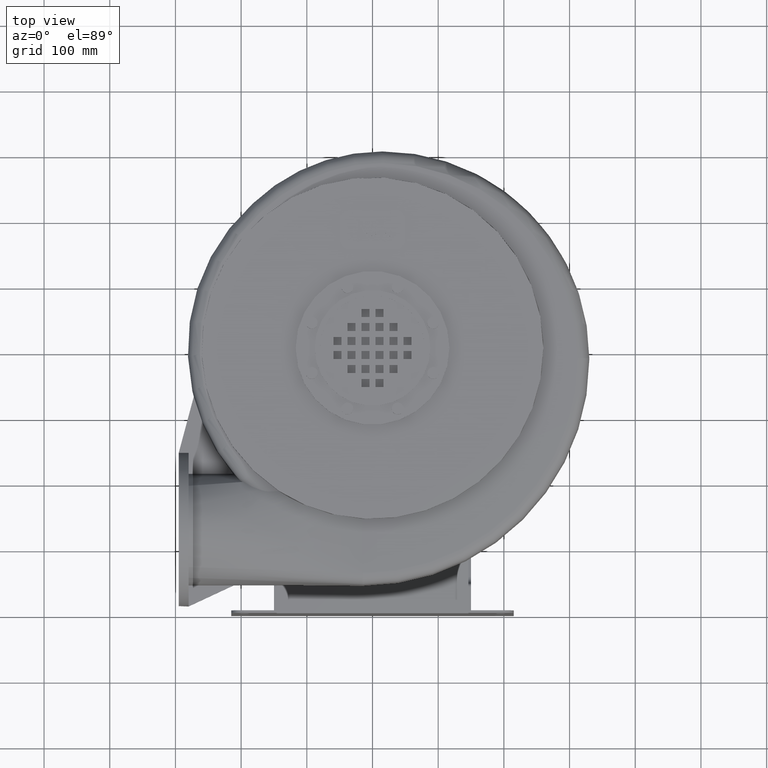
[diagram: clean part render]
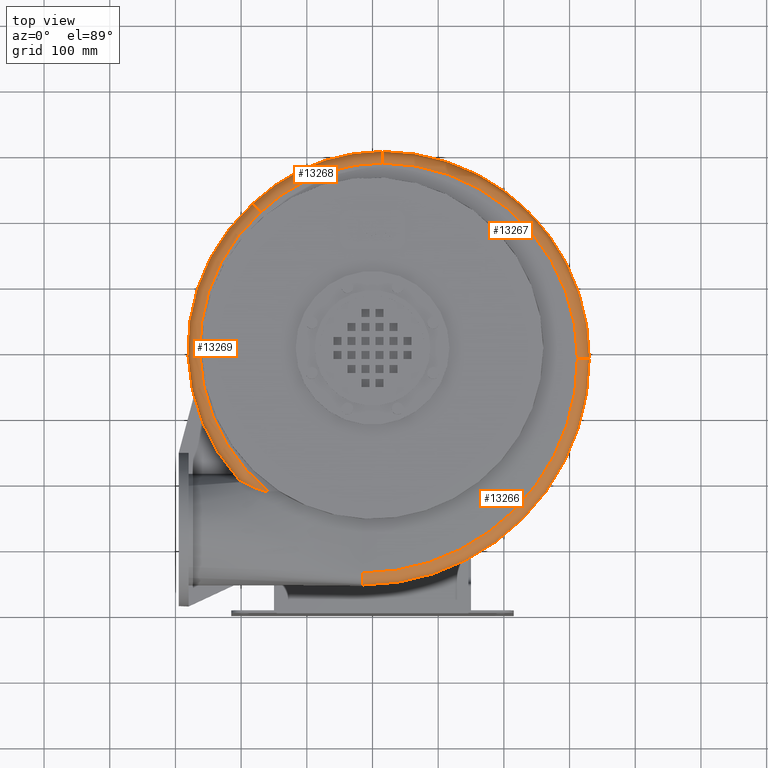
[diagram: same view with one multi-face feature highlighted, each face labeled with its STEP entity id]
A machine part, top view. The highlighted faces form ONE feature: a constant-radius fillet chain: 4 tangent blend faces with common blend radius 18 mm. The faces share edges in the B-rep.
Their STEP definitions:
[1] entity #13267 (Torus):
#22=TOROIDAL_SURFACE('',#13975,297.,18.);
#3809=FACE_OUTER_BOUND('',#4631,.T.);
#4631=EDGE_LOOP('',(#11240,#11241,#11242,#11243));
#4904=CIRCLE('',#13973,18.);
#4906=CIRCLE('',#13976,315.);
#4907=CIRCLE('',#13977,18.);
#4908=CIRCLE('',#13978,297.);
#6092=VERTEX_POINT('',#22809);
#6093=VERTEX_POINT('',#22811);
#6094=VERTEX_POINT('',#22815);
#6095=VERTEX_POINT('',#22817);
#7835=EDGE_CURVE('',#6093,#6092,#4904,.T.);
#7837=EDGE_CURVE('',#6092,#6094,#4906,.T.);
#7838=EDGE_CURVE('',#6095,#6094,#4907,.T.);
#7839=EDGE_CURVE('',#6095,#6093,#4908,.T.);
#11240=ORIENTED_EDGE('',*,*,#7835,.T.);
#11241=ORIENTED_EDGE('',*,*,#7837,.T.);
#11242=ORIENTED_EDGE('',*,*,#7838,.F.);
#11243=ORIENTED_EDGE('',*,*,#7839,.T.);
#13267=ADVANCED_FACE('',(#3809),#22,.T.);
#13973=AXIS2_PLACEMENT_3D('',#22812,#16500,#16501);
#13975=AXIS2_PLACEMENT_3D('',#22814,#16504,#16505);
#13976=AXIS2_PLACEMENT_3D('',#22816,#16506,#16507);
#13977=AXIS2_PLACEMENT_3D('',#22818,#16508,#16509);
#13978=AXIS2_PLACEMENT_3D('',#22819,#16510,#16511);
#16500=DIRECTION('center_axis',(-5.41233724504767E-15,1.,-4.67343487721591E-16));
#16501=DIRECTION('ref_axis',(2.21867473071667E-15,4.67343487721603E-16,
1.));
#16504=DIRECTION('center_axis',(-2.21867473071667E-15,-4.67343487721603E-16,
-1.));
#16505=DIRECTION('ref_axis',(-1.,-5.41365893912457E-15,2.34591887362065E-15));
#16506=DIRECTION('center_axis',(2.21867473071667E-15,4.67343487721603E-16,
1.));
#16507=DIRECTION('ref_axis',(0.707106781186544,0.707106781186551,-1.89930169664831E-15));
#16508=DIRECTION('center_axis',(-1.,-4.42547233426975E-15,2.21867473071668E-15));
#16509=DIRECTION('ref_axis',(2.21867473071667E-15,4.67343487721603E-16,
1.));
#16510=DIRECTION('center_axis',(-2.21867473071667E-15,-4.67343487721603E-16,
-1.));
#16511=DIRECTION('ref_axis',(0.707106781186544,0.707106781186551,-1.89930169664831E-15));
#22809=CARTESIAN_POINT('',(330.,385.,432.499999999997));
#22811=CARTESIAN_POINT('',(312.,385.,450.499999999997));
#22812=CARTESIAN_POINT('Origin',(312.,385.,432.499999999997));
#22814=CARTESIAN_POINT('Origin',(14.9999999999995,384.999999999999,432.499999999998));
#22815=CARTESIAN_POINT('',(14.9999999999978,699.999999999999,432.499999999998));
#22816=CARTESIAN_POINT('Origin',(14.9999999999995,384.999999999999,432.499999999998));
#22817=CARTESIAN_POINT('',(14.9999999999979,681.999999999999,450.499999999998));
#22818=CARTESIAN_POINT('Origin',(14.9999999999979,681.999999999999,432.499999999998));
#22819=CARTESIAN_POINT('Origin',(14.9999999999995,384.999999999999,450.499999999998));
[2] entity #13266 (Torus):
#21=TOROIDAL_SURFACE('',#13970,327.,18.);
#3808=FACE_OUTER_BOUND('',#4630,.T.);
#4630=EDGE_LOOP('',(#11236,#11237,#11238,#11239));
#4902=CIRCLE('',#13971,18.);
#4903=CIRCLE('',#13972,345.);
#4904=CIRCLE('',#13973,18.);
#4905=CIRCLE('',#13974,327.);
#6090=VERTEX_POINT('',#22806);
#6091=VERTEX_POINT('',#22807);
#6092=VERTEX_POINT('',#22809);
#6093=VERTEX_POINT('',#22811);
#7833=EDGE_CURVE('',#6090,#6091,#4902,.T.);
#7834=EDGE_CURVE('',#6091,#6092,#4903,.T.);
#7835=EDGE_CURVE('',#6093,#6092,#4904,.T.);
#7836=EDGE_CURVE('',#6093,#6090,#4905,.T.);
#11236=ORIENTED_EDGE('',*,*,#7833,.T.);
#11237=ORIENTED_EDGE('',*,*,#7834,.T.);
#11238=ORIENTED_EDGE('',*,*,#7835,.F.);
#11239=ORIENTED_EDGE('',*,*,#7836,.T.);
#13266=ADVANCED_FACE('',(#3808),#21,.T.);
#13970=AXIS2_PLACEMENT_3D('',#22805,#16494,#16495);
#13971=AXIS2_PLACEMENT_3D('',#22808,#16496,#16497);
#13972=AXIS2_PLACEMENT_3D('',#22810,#16498,#16499);
#13973=AXIS2_PLACEMENT_3D('',#22812,#16500,#16501);
#13974=AXIS2_PLACEMENT_3D('',#22813,#16502,#16503);
#16494=DIRECTION('center_axis',(-2.21867473071667E-15,-4.67343487721603E-16,
-1.));
#16495=DIRECTION('ref_axis',(-1.,-5.43719658668598E-15,2.3066894610183E-15));
#16496=DIRECTION('center_axis',(1.,5.51295955848887E-15,-2.21867473071668E-15));
#16497=DIRECTION('ref_axis',(5.51295955848887E-15,-1.,4.67343487721591E-16));
#16498=DIRECTION('center_axis',(2.21867473071667E-15,4.67343487721603E-16,
1.));
#16499=DIRECTION('ref_axis',(0.707106781186551,-0.707106781186544,-1.23837819802569E-15));
#16500=DIRECTION('center_axis',(-5.41233724504767E-15,1.,-4.67343487721591E-16));
#16501=DIRECTION('ref_axis',(2.21867473071667E-15,4.67343487721603E-16,
1.));
#16502=DIRECTION('center_axis',(-2.21867473071667E-15,-4.67343487721603E-16,
-1.));
#16503=DIRECTION('ref_axis',(0.707106781186551,-0.707106781186544,-1.23837819802569E-15));
#22805=CARTESIAN_POINT('Origin',(-15.0000000000005,384.999999999998,432.499999999998));
#22806=CARTESIAN_POINT('',(-14.9999999999986,57.9999999999984,450.499999999998));
#22807=CARTESIAN_POINT('',(-14.9999999999986,39.9999999999984,432.499999999998));
#22808=CARTESIAN_POINT('Origin',(-14.9999999999987,57.9999999999984,432.499999999998));
#22809=CARTESIAN_POINT('',(330.,385.,432.499999999997));
#22810=CARTESIAN_POINT('Origin',(-15.0000000000005,384.999999999998,432.499999999998));
#22811=CARTESIAN_POINT('',(312.,385.,450.499999999997));
#22812=CARTESIAN_POINT('Origin',(312.,385.,432.499999999997));
#22813=CARTESIAN_POINT('Origin',(-15.0000000000005,384.999999999998,450.499999999998));
[3] entity #13268 (Torus):
#23=TOROIDAL_SURFACE('',#13979,267.,18.);
#2729=B_SPLINE_CURVE_WITH_KNOTS('',3,(#22824,#22825,#22826,#22827,#22828,
#22829,#22830,#22831,#22832,#22833,#22834,#22835,#22836,#22837),
 .UNSPECIFIED.,.F.,.F.,(4,2,2,2,2,2,4),(-2.83488517504639,-2.83200831798652,
-2.47070126932763,-2.10940030404513,-1.40617260926018,-0.703058524365479,
0.),.UNSPECIFIED.);
#3810=FACE_OUTER_BOUND('',#4632,.T.);
#4632=EDGE_LOOP('',(#11244,#11245,#11246,#11247));
#4907=CIRCLE('',#13977,18.);
#4909=CIRCLE('',#13980,285.);
#4910=CIRCLE('',#13981,267.);
#6094=VERTEX_POINT('',#22815);
#6095=VERTEX_POINT('',#22817);
#6096=VERTEX_POINT('',#22821);
#6097=VERTEX_POINT('',#22823);
#7838=EDGE_CURVE('',#6095,#6094,#4907,.T.);
#7840=EDGE_CURVE('',#6094,#6096,#4909,.T.);
#7841=EDGE_CURVE('',#6097,#6096,#2729,.T.);
#7842=EDGE_CURVE('',#6097,#6095,#4910,.T.);
#11244=ORIENTED_EDGE('',*,*,#7838,.T.);
#11245=ORIENTED_EDGE('',*,*,#7840,.T.);
#11246=ORIENTED_EDGE('',*,*,#7841,.F.);
#11247=ORIENTED_EDGE('',*,*,#7842,.T.);
#13268=ADVANCED_FACE('',(#3810),#23,.T.);
#13977=AXIS2_PLACEMENT_3D('',#22818,#16508,#16509);
#13979=AXIS2_PLACEMENT_3D('',#22820,#16512,#16513);
#13980=AXIS2_PLACEMENT_3D('',#22822,#16514,#16515);
#13981=AXIS2_PLACEMENT_3D('',#22838,#16516,#16517);
#16508=DIRECTION('center_axis',(-1.,-4.42547233426975E-15,2.21867473071668E-15));
#16509=DIRECTION('ref_axis',(2.21867473071667E-15,4.67343487721603E-16,
1.));
#16512=DIRECTION('center_axis',(-2.21867473071667E-15,-4.67343487721603E-16,
-1.));
#16513=DIRECTION('ref_axis',(-1.,-5.38516599733971E-15,2.1939565174347E-15));
#16514=DIRECTION('center_axis',(2.21867473071667E-15,4.67343487721603E-16,
1.));
#16515=DIRECTION('ref_axis',(-0.373383455282054,0.92767709647357,3.94872587356564E-16));
#16516=DIRECTION('center_axis',(-2.21867473071667E-15,-4.67343487721603E-16,
-1.));
#16517=DIRECTION('ref_axis',(-0.373383455282054,0.927677096473571,3.94872587356564E-16));
#22815=CARTESIAN_POINT('',(14.9999999999978,699.999999999999,432.499999999998));
#22817=CARTESIAN_POINT('',(14.9999999999979,681.999999999999,450.499999999998));
#22818=CARTESIAN_POINT('Origin',(14.9999999999979,681.999999999999,432.499999999998));
#22820=CARTESIAN_POINT('Origin',(14.9999999999993,414.999999999999,432.499999999998));
#22821=CARTESIAN_POINT('',(-182.436189410375,620.533333333331,432.499999999998));
#22822=CARTESIAN_POINT('Origin',(14.9999999999993,414.999999999999,432.499999999998));
#22823=CARTESIAN_POINT('',(-170.194192373545,607.333333333331,450.499999999998));
#22824=CARTESIAN_POINT('Ctrl Pts',(-170.194192373545,607.333333333331,450.499999999998));
#22825=CARTESIAN_POINT('Ctrl Pts',(-170.200713365812,607.340364463637,450.499999999998));
#22826=CARTESIAN_POINT('Ctrl Pts',(-170.207234356829,607.347395592722,450.499992339338));
#22827=CARTESIAN_POINT('Ctrl Pts',(-171.032731502844,608.237471559803,450.49805280055));
#22828=CARTESIAN_POINT('Ctrl Pts',(-171.849513861524,609.118155446761,450.375301420064));
#22829=CARTESIAN_POINT('Ctrl Pts',(-173.454112500347,610.848299089959,449.891832147622));
#22830=CARTESIAN_POINT('Ctrl Pts',(-174.237891878407,611.693406079676,449.532334719868));
#22831=CARTESIAN_POINT('Ctrl Pts',(-176.457925054644,614.087157935863,448.142045660401));
#22832=CARTESIAN_POINT('Ctrl Pts',(-177.788490364918,615.521853956856,446.811209274199));
#22833=CARTESIAN_POINT('Ctrl Pts',(-180.027640172082,617.936253077707,443.47466010468));
#22834=CARTESIAN_POINT('Ctrl Pts',(-180.914885145688,618.892946152111,441.500953948425));
#22835=CARTESIAN_POINT('Ctrl Pts',(-182.124925692854,620.197703643501,437.164631659346));
#22836=CARTESIAN_POINT('Ctrl Pts',(-182.436189410375,620.533333333331,434.84352841455));
#22837=CARTESIAN_POINT('Ctrl Pts',(-182.436189410375,620.533333333331,432.499999999998));
#22838=CARTESIAN_POINT('Origin',(14.9999999999994,414.999999999999,450.499999999998));
[4] entity #13269 (Torus):
#24=TOROIDAL_SURFACE('',#13982,278.,18.);
#2729=B_SPLINE_CURVE_WITH_KNOTS('',3,(#22824,#22825,#22826,#22827,#22828,
#22829,#22830,#22831,#22832,#22833,#22834,#22835,#22836,#22837),
 .UNSPECIFIED.,.F.,.F.,(4,2,2,2,2,2,4),(-2.83488517504639,-2.83200831798652,
-2.47070126932763,-2.10940030404513,-1.40617260926018,-0.703058524365479,
0.),.UNSPECIFIED.);
#2730=B_SPLINE_CURVE_WITH_KNOTS('',3,(#22842,#22843,#22844,#22845,#22846,
#22847,#22848,#22849),.UNSPECIFIED.,.F.,.F.,(4,2,2,4),(0.,2.90405011560865,
4.6215907110657,5.10169561148826),.UNSPECIFIED.);
#2731=B_SPLINE_CURVE_WITH_KNOTS('',3,(#22853,#22854,#22855,#22856,#22857,
#22858,#22859),.UNSPECIFIED.,.F.,.F.,(4,3,4),(0.000262802662768154,0.521391874350161,
1.10720859134091),.UNSPECIFIED.);
#3811=FACE_OUTER_BOUND('',#4633,.T.);
#4633=EDGE_LOOP('',(#11248,#11249,#11250,#11251,#11252));
#4911=CIRCLE('',#13983,278.);
#4912=CIRCLE('',#13984,296.);
#6096=VERTEX_POINT('',#22821);
#6097=VERTEX_POINT('',#22823);
#6098=VERTEX_POINT('',#22840);
#6099=VERTEX_POINT('',#22841);
#6100=VERTEX_POINT('',#22851);
#7841=EDGE_CURVE('',#6097,#6096,#2729,.T.);
#7843=EDGE_CURVE('',#6098,#6099,#2730,.T.);
#7844=EDGE_CURVE('',#6099,#6097,#4911,.T.);
#7845=EDGE_CURVE('',#6096,#6100,#4912,.T.);
#7846=EDGE_CURVE('',#6100,#6098,#2731,.T.);
#11248=ORIENTED_EDGE('',*,*,#7843,.T.);
#11249=ORIENTED_EDGE('',*,*,#7844,.T.);
#11250=ORIENTED_EDGE('',*,*,#7841,.T.);
#11251=ORIENTED_EDGE('',*,*,#7845,.T.);
#11252=ORIENTED_EDGE('',*,*,#7846,.T.);
#13269=ADVANCED_FACE('',(#3811),#24,.T.);
#13982=AXIS2_PLACEMENT_3D('',#22839,#16518,#16519);
#13983=AXIS2_PLACEMENT_3D('',#22850,#16520,#16521);
#13984=AXIS2_PLACEMENT_3D('',#22852,#16522,#16523);
#16518=DIRECTION('center_axis',(-2.21867473071667E-15,-4.67343487721603E-16,
-1.));
#16519=DIRECTION('ref_axis',(-1.,-5.37708016250887E-15,2.30446292678951E-15));
#16520=DIRECTION('center_axis',(-2.21867473071667E-15,-4.67343487721603E-16,
-1.));
#16521=DIRECTION('ref_axis',(-0.951002462149346,-0.309183306447618,2.25445993640062E-15));
#16522=DIRECTION('center_axis',(2.21867473071667E-15,4.67343487721603E-16,
1.));
#16523=DIRECTION('ref_axis',(-0.951002462149346,-0.309183306447618,2.25445993640062E-15));
#22821=CARTESIAN_POINT('',(-182.436189410375,620.533333333331,432.499999999998));
#22823=CARTESIAN_POINT('',(-170.194192373545,607.333333333331,450.499999999998));
#22824=CARTESIAN_POINT('Ctrl Pts',(-170.194192373545,607.333333333331,450.499999999998));
#22825=CARTESIAN_POINT('Ctrl Pts',(-170.200713365812,607.340364463637,450.499999999998));
#22826=CARTESIAN_POINT('Ctrl Pts',(-170.207234356829,607.347395592722,450.499992339338));
#22827=CARTESIAN_POINT('Ctrl Pts',(-171.032731502844,608.237471559803,450.49805280055));
#22828=CARTESIAN_POINT('Ctrl Pts',(-171.849513861524,609.118155446761,450.375301420064));
#22829=CARTESIAN_POINT('Ctrl Pts',(-173.454112500347,610.848299089959,449.891832147622));
#22830=CARTESIAN_POINT('Ctrl Pts',(-174.237891878407,611.693406079676,449.532334719868));
#22831=CARTESIAN_POINT('Ctrl Pts',(-176.457925054644,614.087157935863,448.142045660401));
#22832=CARTESIAN_POINT('Ctrl Pts',(-177.788490364918,615.521853956856,446.811209274199));
#22833=CARTESIAN_POINT('Ctrl Pts',(-180.027640172082,617.936253077707,443.47466010468));
#22834=CARTESIAN_POINT('Ctrl Pts',(-180.914885145688,618.892946152111,441.500953948425));
#22835=CARTESIAN_POINT('Ctrl Pts',(-182.124925692854,620.197703643501,437.164631659346));
#22836=CARTESIAN_POINT('Ctrl Pts',(-182.436189410375,620.533333333331,434.84352841455));
#22837=CARTESIAN_POINT('Ctrl Pts',(-182.436189410375,620.533333333331,432.499999999998));
#22839=CARTESIAN_POINT('Origin',(14.9999999999994,399.999999999999,432.499999999998));
#22840=CARTESIAN_POINT('',(-197.295181745916,196.831053374247,441.033999099304));
#22841=CARTESIAN_POINT('',(-157.587203799283,182.060427905473,450.499999999998));
#22842=CARTESIAN_POINT('Ctrl Pts',(-197.295181745916,196.831053374247,441.033999099304));
#22843=CARTESIAN_POINT('Ctrl Pts',(-189.828588804997,192.133014794327,445.01947993747));
#22844=CARTESIAN_POINT('Ctrl Pts',(-180.857535945571,187.978626392138,447.475752044286));
#22845=CARTESIAN_POINT('Ctrl Pts',(-168.574453891699,183.710993882681,449.704578514907));
#22846=CARTESIAN_POINT('Ctrl Pts',(-164.200885050813,182.559406574317,450.211587700185));
#22847=CARTESIAN_POINT('Ctrl Pts',(-159.656877136107,182.074567111144,450.462846296018));
#22848=CARTESIAN_POINT('Ctrl Pts',(-158.603961252658,182.01557164368,450.499999999998));
#22849=CARTESIAN_POINT('Ctrl Pts',(-157.587203799283,182.060427905472,450.499999999998));
#22850=CARTESIAN_POINT('Origin',(14.9999999999995,399.999999999999,450.499999999998));
#22851=CARTESIAN_POINT('',(-203.377891039086,200.182341357622,432.499999999998));
#22852=CARTESIAN_POINT('Origin',(14.9999999999994,399.999999999999,432.499999999998));
#22853=CARTESIAN_POINT('Ctrl Pts',(-203.377891039086,200.181903998339,432.499495593211));
#22854=CARTESIAN_POINT('Ctrl Pts',(-202.827027727731,199.579907191511,434.033076417381));
#22855=CARTESIAN_POINT('Ctrl Pts',(-202.025987517003,198.99944467407,435.489004872586));
#22856=CARTESIAN_POINT('Ctrl Pts',(-201.0683507231,198.464575976271,436.839297356507));
#22857=CARTESIAN_POINT('Ctrl Pts',(-199.991842669299,197.863314136222,438.357201370793));
#22858=CARTESIAN_POINT('Ctrl Pts',(-198.704139435539,197.312112582406,439.761310536884));
#22859=CARTESIAN_POINT('Ctrl Pts',(-197.295181745916,196.831053374247,441.033999099304));